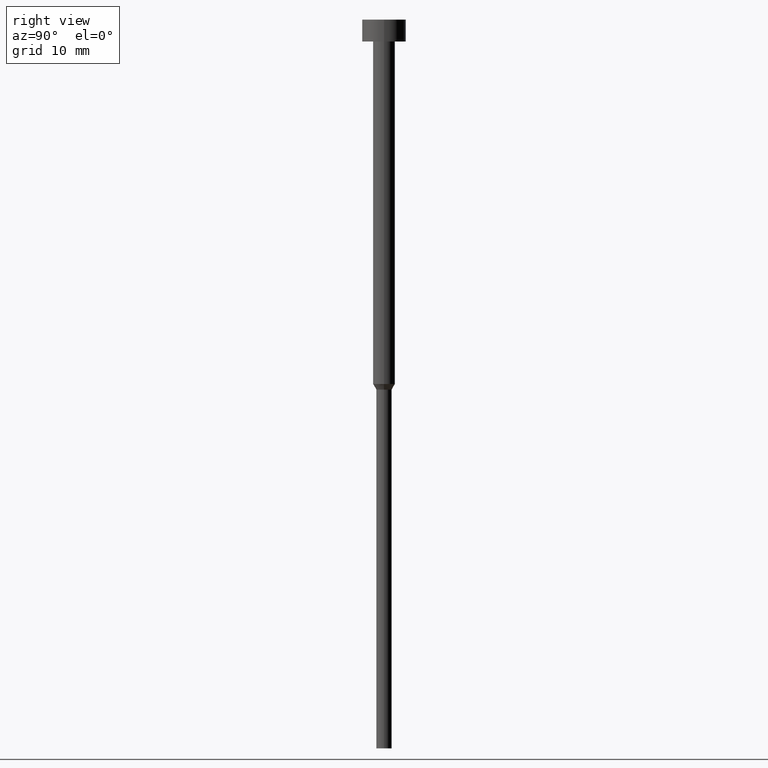
[diagram: clean part render]
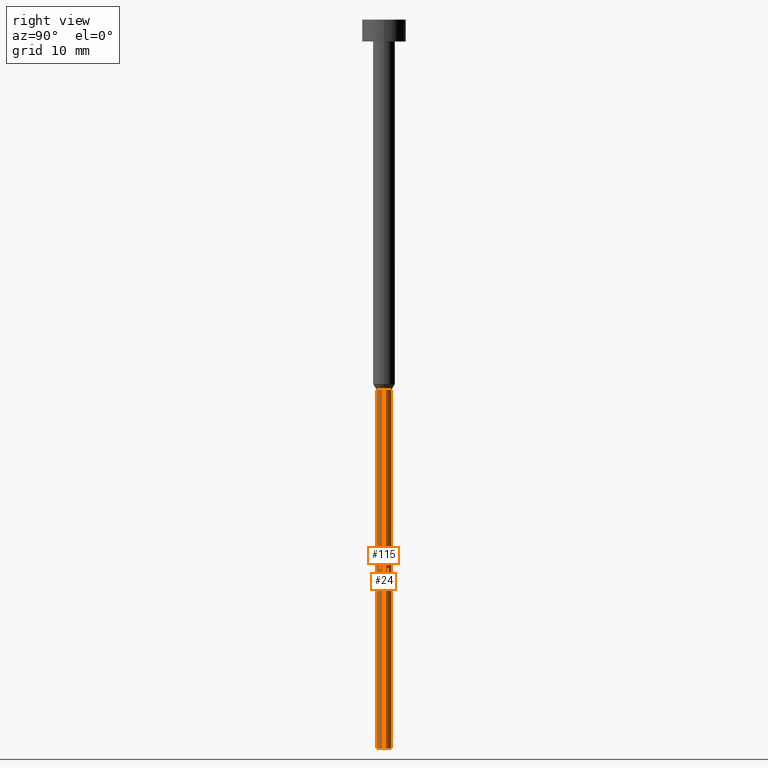
[diagram: same view with one multi-face feature highlighted, each face labeled with its STEP entity id]
A machine part, right view. The highlighted faces form ONE feature: a constant-radius fillet chain: 2 tangent blend faces with common blend radius 1.05 mm. The faces share edges in the B-rep.
Their STEP definitions:
[1] entity #24 (Cylinder):
#6 = VERTEX_POINT ( 'NONE', #100 ) ;
#10 = DIRECTION ( 'NONE',  ( 1.000000000000000000, 0.000000000000000000, 0.000000000000000000 ) ) ;
#17 = DIRECTION ( 'NONE',  ( 1.000000000000000000, 0.000000000000000000, 0.000000000000000000 ) ) ;
#22 = VECTOR ( 'NONE', #93, 1000.000000000000000 ) ;
#24 = ADVANCED_FACE ( 'NONE', ( #237 ), #255, .T. ) ;
#26 = AXIS2_PLACEMENT_3D ( 'NONE', #77, #200, #10 ) ;
#31 = ORIENTED_EDGE ( 'NONE', *, *, #253, .T. ) ;
#58 = LINE ( 'NONE', #230, #22 ) ;
#77 = CARTESIAN_POINT ( 'NONE',  ( 0.000000000000000000, 0.000000000000000000, -100.0000000000000000 ) ) ;
#90 = CARTESIAN_POINT ( 'NONE',  ( -1.050000000000000044, 1.285879139104720978E-16, -50.77942286340599765 ) ) ;
#91 = EDGE_CURVE ( 'NONE', #6, #338, #269, .T. ) ;
#93 = DIRECTION ( 'NONE',  ( -0.000000000000000000, -0.000000000000000000, 1.000000000000000000 ) ) ;
#94 = EDGE_CURVE ( 'NONE', #6, #258, #58, .T. ) ;
#97 = CARTESIAN_POINT ( 'NONE',  ( 1.050000000000000044, 0.000000000000000000, -50.77942286340599765 ) ) ;
#100 = CARTESIAN_POINT ( 'NONE',  ( 1.050000000000000044, 0.000000000000000000, -100.0000000000000000 ) ) ;
#102 = DIRECTION ( 'NONE',  ( -0.000000000000000000, -0.000000000000000000, 1.000000000000000000 ) ) ;
#159 = CARTESIAN_POINT ( 'NONE',  ( -1.050000000000000044, 1.285879139104720978E-16, -100.0000000000000000 ) ) ;
#173 = ORIENTED_EDGE ( 'NONE', *, *, #307, .F. ) ;
#193 = VERTEX_POINT ( 'NONE', #90 ) ;
#195 = CIRCLE ( 'NONE', #208, 1.050000000000000044 ) ;
#200 = DIRECTION ( 'NONE',  ( -0.000000000000000000, -0.000000000000000000, 1.000000000000000000 ) ) ;
#208 = AXIS2_PLACEMENT_3D ( 'NONE', #213, #293, #320 ) ;
#211 = CARTESIAN_POINT ( 'NONE',  ( 0.000000000000000000, 0.000000000000000000, 0.000000000000000000 ) ) ;
#213 = CARTESIAN_POINT ( 'NONE',  ( 0.000000000000000000, 0.000000000000000000, -50.77942286340599765 ) ) ;
#230 = CARTESIAN_POINT ( 'NONE',  ( 1.050000000000000044, 0.000000000000000000, 0.000000000000000000 ) ) ;
#237 = FACE_OUTER_BOUND ( 'NONE', #276, .T. ) ;
#239 = AXIS2_PLACEMENT_3D ( 'NONE', #211, #335, #17 ) ;
#242 = ORIENTED_EDGE ( 'NONE', *, *, #94, .F. ) ;
#253 = EDGE_CURVE ( 'NONE', #338, #193, #332, .T. ) ;
#254 = ORIENTED_EDGE ( 'NONE', *, *, #91, .T. ) ;
#255 = CYLINDRICAL_SURFACE ( 'NONE', #239, 1.050000000000000044 ) ;
#258 = VERTEX_POINT ( 'NONE', #97 ) ;
#269 = CIRCLE ( 'NONE', #26, 1.050000000000000044 ) ;
#275 = VECTOR ( 'NONE', #102, 1000.000000000000000 ) ;
#276 = EDGE_LOOP ( 'NONE', ( #254, #31, #173, #242 ) ) ;
#282 = CARTESIAN_POINT ( 'NONE',  ( -1.050000000000000044, 1.285879139104720978E-16, 0.000000000000000000 ) ) ;
#293 = DIRECTION ( 'NONE',  ( -0.000000000000000000, -0.000000000000000000, 1.000000000000000000 ) ) ;
#307 = EDGE_CURVE ( 'NONE', #258, #193, #195, .T. ) ;
#320 = DIRECTION ( 'NONE',  ( 1.000000000000000000, 0.000000000000000000, 0.000000000000000000 ) ) ;
#332 = LINE ( 'NONE', #282, #275 ) ;
#335 = DIRECTION ( 'NONE',  ( -0.000000000000000000, -0.000000000000000000, 1.000000000000000000 ) ) ;
#338 = VERTEX_POINT ( 'NONE', #159 ) ;
[2] entity #115 (Cylinder):
#6 = VERTEX_POINT ( 'NONE', #100 ) ;
#22 = VECTOR ( 'NONE', #93, 1000.000000000000000 ) ;
#36 = DIRECTION ( 'NONE',  ( -0.000000000000000000, -0.000000000000000000, 1.000000000000000000 ) ) ;
#50 = DIRECTION ( 'NONE',  ( -0.000000000000000000, -0.000000000000000000, 1.000000000000000000 ) ) ;
#57 = ORIENTED_EDGE ( 'NONE', *, *, #304, .F. ) ;
#58 = LINE ( 'NONE', #230, #22 ) ;
#62 = CARTESIAN_POINT ( 'NONE',  ( 0.000000000000000000, 0.000000000000000000, 0.000000000000000000 ) ) ;
#90 = CARTESIAN_POINT ( 'NONE',  ( -1.050000000000000044, 1.285879139104720978E-16, -50.77942286340599765 ) ) ;
#92 = CIRCLE ( 'NONE', #201, 1.050000000000000044 ) ;
#93 = DIRECTION ( 'NONE',  ( -0.000000000000000000, -0.000000000000000000, 1.000000000000000000 ) ) ;
#94 = EDGE_CURVE ( 'NONE', #6, #258, #58, .T. ) ;
#97 = CARTESIAN_POINT ( 'NONE',  ( 1.050000000000000044, 0.000000000000000000, -50.77942286340599765 ) ) ;
#100 = CARTESIAN_POINT ( 'NONE',  ( 1.050000000000000044, 0.000000000000000000, -100.0000000000000000 ) ) ;
#102 = DIRECTION ( 'NONE',  ( -0.000000000000000000, -0.000000000000000000, 1.000000000000000000 ) ) ;
#105 = EDGE_LOOP ( 'NONE', ( #328, #119, #352, #57 ) ) ;
#110 = EDGE_CURVE ( 'NONE', #338, #6, #134, .T. ) ;
#115 = ADVANCED_FACE ( 'NONE', ( #298 ), #248, .T. ) ;
#116 = DIRECTION ( 'NONE',  ( -0.000000000000000000, -0.000000000000000000, 1.000000000000000000 ) ) ;
#119 = ORIENTED_EDGE ( 'NONE', *, *, #110, .T. ) ;
#123 = AXIS2_PLACEMENT_3D ( 'NONE', #274, #116, #326 ) ;
#125 = AXIS2_PLACEMENT_3D ( 'NONE', #62, #36, #151 ) ;
#134 = CIRCLE ( 'NONE', #123, 1.050000000000000044 ) ;
#151 = DIRECTION ( 'NONE',  ( 1.000000000000000000, 0.000000000000000000, 0.000000000000000000 ) ) ;
#159 = CARTESIAN_POINT ( 'NONE',  ( -1.050000000000000044, 1.285879139104720978E-16, -100.0000000000000000 ) ) ;
#193 = VERTEX_POINT ( 'NONE', #90 ) ;
#201 = AXIS2_PLACEMENT_3D ( 'NONE', #343, #50, #266 ) ;
#230 = CARTESIAN_POINT ( 'NONE',  ( 1.050000000000000044, 0.000000000000000000, 0.000000000000000000 ) ) ;
#248 = CYLINDRICAL_SURFACE ( 'NONE', #125, 1.050000000000000044 ) ;
#253 = EDGE_CURVE ( 'NONE', #338, #193, #332, .T. ) ;
#258 = VERTEX_POINT ( 'NONE', #97 ) ;
#266 = DIRECTION ( 'NONE',  ( 1.000000000000000000, 0.000000000000000000, 0.000000000000000000 ) ) ;
#274 = CARTESIAN_POINT ( 'NONE',  ( 0.000000000000000000, 0.000000000000000000, -100.0000000000000000 ) ) ;
#275 = VECTOR ( 'NONE', #102, 1000.000000000000000 ) ;
#282 = CARTESIAN_POINT ( 'NONE',  ( -1.050000000000000044, 1.285879139104720978E-16, 0.000000000000000000 ) ) ;
#298 = FACE_OUTER_BOUND ( 'NONE', #105, .T. ) ;
#304 = EDGE_CURVE ( 'NONE', #193, #258, #92, .T. ) ;
#326 = DIRECTION ( 'NONE',  ( 1.000000000000000000, 0.000000000000000000, 0.000000000000000000 ) ) ;
#328 = ORIENTED_EDGE ( 'NONE', *, *, #253, .F. ) ;
#332 = LINE ( 'NONE', #282, #275 ) ;
#338 = VERTEX_POINT ( 'NONE', #159 ) ;
#343 = CARTESIAN_POINT ( 'NONE',  ( 0.000000000000000000, 0.000000000000000000, -50.77942286340599765 ) ) ;
#352 = ORIENTED_EDGE ( 'NONE', *, *, #94, .T. ) ;